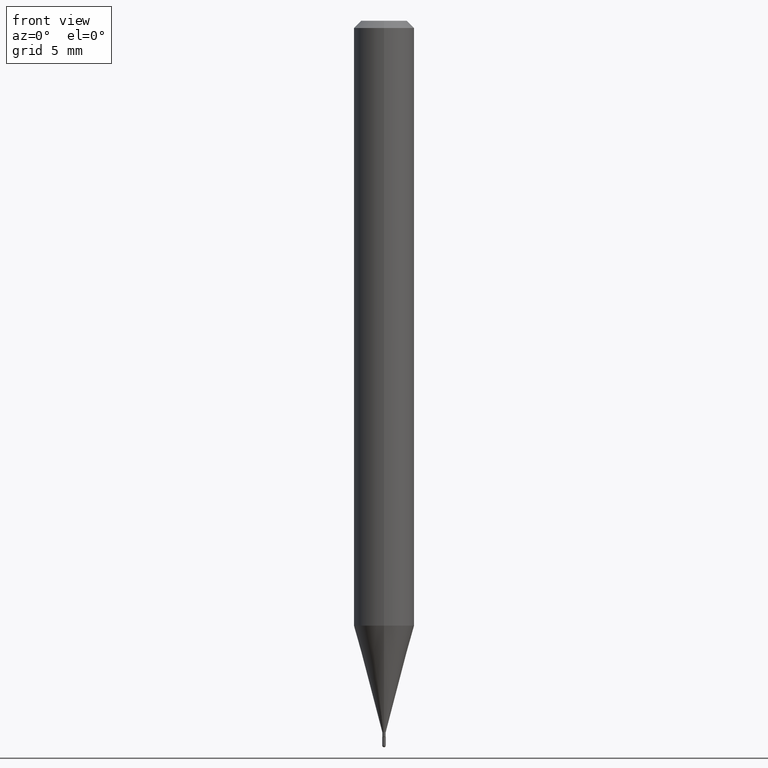
[diagram: clean part render]
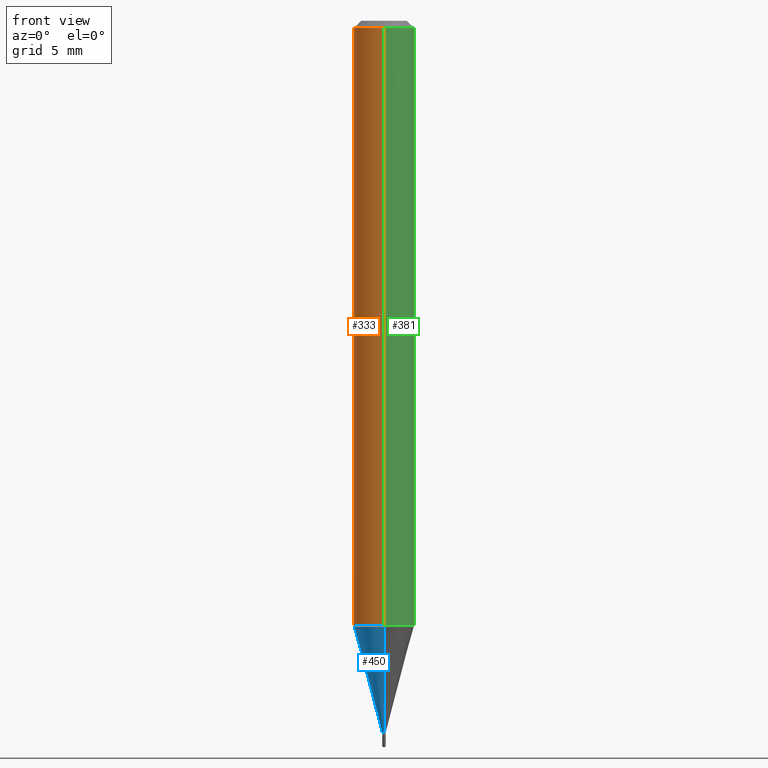
[diagram: same view with three faces highlighted in distinct colors, each labeled with its STEP entity id]
A machine part, front view with three faces highlighted in distinct colors.
Their STEP definitions:

[orange] entity #333 — the highlighted cylindrical surface (edge-blend (fillet) strip) has radius 1.5875 mm, axis along (-0, 0, 1).
#5 = VECTOR ( 'NONE', #292, 39.37007874015748143 ) ;
#21 = CARTESIAN_POINT ( 'NONE',  ( 3.668182812404223070E-31, -5.237251217748296269E-17, -0.01499999999999976179 ) ) ;
#30 = DIRECTION ( 'NONE',  ( -6.982962677686265922E-15, -1.000000000000000000, 4.370956789862821150E-15 ) ) ;
#36 = ORIENTED_EDGE ( 'NONE', *, *, #493, .T. ) ;
#56 = CIRCLE ( 'NONE', #263, 0.06250000000000000000 ) ;
#60 = CARTESIAN_POINT ( 'NONE',  ( -4.364351673553916201E-16, -0.06250000000000000000, 2.182188007395157999E-16 ) ) ;
#90 = CYLINDRICAL_SURFACE ( 'NONE', #310, 0.06250000000000000000 ) ;
#91 = LINE ( 'NONE', #408, #5 ) ;
#131 = VECTOR ( 'NONE', #298, 39.37007874015748143 ) ;
#173 = VERTEX_POINT ( 'NONE', #392 ) ;
#184 = CARTESIAN_POINT ( 'NONE',  ( 0.000000000000000000, 0.000000000000000000, 0.000000000000000000 ) ) ;
#197 = ORIENTED_EDGE ( 'NONE', *, *, #211, .T. ) ;
#208 = EDGE_CURVE ( 'NONE', #218, #422, #91, .T. ) ;
#211 = EDGE_CURVE ( 'NONE', #327, #173, #449, .T. ) ;
#218 = VERTEX_POINT ( 'NONE', #336 ) ;
#224 = DIRECTION ( 'NONE',  ( -2.445455208269520980E-29, 3.491500811832252799E-15, 1.000000000000000000 ) ) ;
#235 = DIRECTION ( 'NONE',  ( -2.445455208269520980E-29, 3.491500811832252799E-15, 1.000000000000000000 ) ) ;
#254 = DIRECTION ( 'NONE',  ( -6.982962677686265922E-15, -1.000000000000000000, 3.491500811832252799E-15 ) ) ;
#262 = DIRECTION ( 'NONE',  ( -2.445455208269520980E-29, 3.491500811832252799E-15, 1.000000000000000000 ) ) ;
#263 = AXIS2_PLACEMENT_3D ( 'NONE', #21, #262, #294 ) ;
#265 = EDGE_CURVE ( 'NONE', #422, #173, #56, .T. ) ;
#291 = CARTESIAN_POINT ( 'NONE',  ( -4.364351673553611504E-16, -0.06250000000000435763, -1.248809002353436615 ) ) ;
#292 = DIRECTION ( 'NONE',  ( -2.445455208269520699E-29, 3.491500811832253193E-15, 1.000000000000000000 ) ) ;
#294 = DIRECTION ( 'NONE',  ( -6.982962677686265922E-15, -1.000000000000000000, 3.483106191921935554E-15 ) ) ;
#298 = DIRECTION ( 'NONE',  ( -2.445455208269520699E-29, 3.491500811832253193E-15, 1.000000000000000000 ) ) ;
#302 = AXIS2_PLACEMENT_3D ( 'NONE', #377, #235, #30 ) ;
#310 = AXIS2_PLACEMENT_3D ( 'NONE', #184, #224, #254 ) ;
#327 = VERTEX_POINT ( 'NONE', #291 ) ;
#333 = ADVANCED_FACE ( 'NONE', ( #444 ), #90, .T. ) ;
#336 = CARTESIAN_POINT ( 'NONE',  ( 4.440892098500930859E-16, 0.06249999999999564237, -1.248809002353437059 ) ) ;
#346 = ORIENTED_EDGE ( 'NONE', *, *, #208, .F. ) ;
#377 = CARTESIAN_POINT ( 'NONE',  ( 3.053906478939076642E-29, -4.360217645540450292E-15, -1.248809002353436837 ) ) ;
#392 = CARTESIAN_POINT ( 'NONE',  ( -4.364351673553912750E-16, -0.06250000000000005551, -0.01499999999999954321 ) ) ;
#408 = CARTESIAN_POINT ( 'NONE',  ( 4.440892098500625669E-16, 0.06250000000000000000, -2.182188007395157999E-16 ) ) ;
#416 = CARTESIAN_POINT ( 'NONE',  ( 4.440892098500932831E-16, 0.06249999999999995143, -0.01499999999999997863 ) ) ;
#422 = VERTEX_POINT ( 'NONE', #416 ) ;
#444 = FACE_OUTER_BOUND ( 'NONE', #498, .T. ) ;
#449 = LINE ( 'NONE', #60, #131 ) ;
#451 = CIRCLE ( 'NONE', #302, 0.06250000000000000000 ) ;
#479 = ORIENTED_EDGE ( 'NONE', *, *, #265, .F. ) ;
#493 = EDGE_CURVE ( 'NONE', #218, #327, #451, .T. ) ;
#498 = EDGE_LOOP ( 'NONE', ( #346, #36, #197, #479 ) ) ;

[blue] entity #450 — the highlighted conical surface has half-angle 15 deg.
#20 = VECTOR ( 'NONE', #152, 39.37007874015748143 ) ;
#26 = DIRECTION ( 'NONE',  ( -6.982962677686265133E-15, -1.000000000000000000, 0.000000000000000000 ) ) ;
#30 = DIRECTION ( 'NONE',  ( -6.982962677686265922E-15, -1.000000000000000000, 4.370956789862821150E-15 ) ) ;
#34 = VECTOR ( 'NONE', #446, 39.37007874015748854 ) ;
#45 = EDGE_CURVE ( 'NONE', #457, #241, #47, .T. ) ;
#47 = CIRCLE ( 'NONE', #319, 0.003499999999999924179 ) ;
#58 = EDGE_CURVE ( 'NONE', #457, #218, #504, .T. ) ;
#93 = DIRECTION ( 'NONE',  ( -6.982962677686265133E-15, -1.000000000000000000, 0.000000000000000000 ) ) ;
#105 = FACE_OUTER_BOUND ( 'NONE', #388, .T. ) ;
#141 = CARTESIAN_POINT ( 'NONE',  ( 3.592373700947925645E-29, -5.129014692581578904E-15, -1.468999999999999861 ) ) ;
#152 = DIRECTION ( 'NONE',  ( 1.839019923739602682E-15, 0.2588190451025252914, 0.9659258262890670910 ) ) ;
#158 = CARTESIAN_POINT ( 'NONE',  ( 2.486899575163888867E-17, 0.003499999999994795035, -1.468999999999999861 ) ) ;
#218 = VERTEX_POINT ( 'NONE', #336 ) ;
#235 = DIRECTION ( 'NONE',  ( -2.445455208269520980E-29, 3.491500811832252799E-15, 1.000000000000000000 ) ) ;
#241 = VERTEX_POINT ( 'NONE', #260 ) ;
#260 = CARTESIAN_POINT ( 'NONE',  ( -2.444036937186547418E-17, -0.003500000000005053322, -1.468999999999999861 ) ) ;
#264 = CARTESIAN_POINT ( 'NONE',  ( 2.344791028008661059E-16, 0.003499999999994795035, -1.468999999999999861 ) ) ;
#272 = ORIENTED_EDGE ( 'NONE', *, *, #493, .F. ) ;
#291 = CARTESIAN_POINT ( 'NONE',  ( -4.364351673553611504E-16, -0.06250000000000435763, -1.248809002353436615 ) ) ;
#293 = EDGE_CURVE ( 'NONE', #241, #327, #340, .T. ) ;
#299 = DIRECTION ( 'NONE',  ( -2.445455208269520980E-29, 3.491500811832252799E-15, 1.000000000000000000 ) ) ;
#302 = AXIS2_PLACEMENT_3D ( 'NONE', #377, #235, #30 ) ;
#319 = AXIS2_PLACEMENT_3D ( 'NONE', #141, #299, #93 ) ;
#320 = ORIENTED_EDGE ( 'NONE', *, *, #293, .T. ) ;
#327 = VERTEX_POINT ( 'NONE', #291 ) ;
#331 = CONICAL_SURFACE ( 'NONE', #490, 0.003499999999999924179, 0.2617993877991506291 ) ;
#336 = CARTESIAN_POINT ( 'NONE',  ( 4.440892098500930859E-16, 0.06249999999999564237, -1.248809002353437059 ) ) ;
#340 = LINE ( 'NONE', #480, #34 ) ;
#377 = CARTESIAN_POINT ( 'NONE',  ( 3.053906478939076642E-29, -4.360217645540450292E-15, -1.248809002353436837 ) ) ;
#388 = EDGE_LOOP ( 'NONE', ( #510, #439, #320, #272 ) ) ;
#439 = ORIENTED_EDGE ( 'NONE', *, *, #45, .T. ) ;
#446 = DIRECTION ( 'NONE',  ( -1.807323732225332900E-15, -0.2588190451025185190, 0.9659258262890689783 ) ) ;
#450 = ADVANCED_FACE ( 'NONE', ( #105 ), #331, .T. ) ;
#451 = CIRCLE ( 'NONE', #302, 0.06250000000000000000 ) ;
#457 = VERTEX_POINT ( 'NONE', #264 ) ;
#480 = CARTESIAN_POINT ( 'NONE',  ( -2.444036937186547418E-17, -0.003500000000005053322, -1.468999999999999861 ) ) ;
#490 = AXIS2_PLACEMENT_3D ( 'NONE', #502, #499, #26 ) ;
#493 = EDGE_CURVE ( 'NONE', #218, #327, #451, .T. ) ;
#499 = DIRECTION ( 'NONE',  ( -2.445455208269520980E-29, 3.491500811832252799E-15, 1.000000000000000000 ) ) ;
#502 = CARTESIAN_POINT ( 'NONE',  ( 3.592373700947925645E-29, -5.129014692581578904E-15, -1.468999999999999861 ) ) ;
#504 = LINE ( 'NONE', #158, #20 ) ;
#510 = ORIENTED_EDGE ( 'NONE', *, *, #58, .F. ) ;

[green] entity #381 — the highlighted cylindrical surface (edge-blend (fillet) strip) has radius 1.5875 mm, axis along (-0, 0, 1).
#5 = VECTOR ( 'NONE', #292, 39.37007874015748143 ) ;
#17 = DIRECTION ( 'NONE',  ( -2.445455208269520980E-29, 3.491500811832252799E-15, 1.000000000000000000 ) ) ;
#28 = AXIS2_PLACEMENT_3D ( 'NONE', #213, #430, #351 ) ;
#60 = CARTESIAN_POINT ( 'NONE',  ( -4.364351673553916201E-16, -0.06250000000000000000, 2.182188007395157999E-16 ) ) ;
#73 = EDGE_LOOP ( 'NONE', ( #222, #145, #332, #231 ) ) ;
#91 = LINE ( 'NONE', #408, #5 ) ;
#131 = VECTOR ( 'NONE', #298, 39.37007874015748143 ) ;
#140 = FACE_OUTER_BOUND ( 'NONE', #73, .T. ) ;
#142 = EDGE_CURVE ( 'NONE', #173, #422, #398, .T. ) ;
#145 = ORIENTED_EDGE ( 'NONE', *, *, #208, .T. ) ;
#150 = DIRECTION ( 'NONE',  ( -6.982962677686265922E-15, -1.000000000000000000, 4.370956789862821150E-15 ) ) ;
#173 = VERTEX_POINT ( 'NONE', #392 ) ;
#196 = CARTESIAN_POINT ( 'NONE',  ( 3.053906478939076642E-29, -4.360217645540450292E-15, -1.248809002353436837 ) ) ;
#200 = CIRCLE ( 'NONE', #342, 0.06250000000000000000 ) ;
#208 = EDGE_CURVE ( 'NONE', #218, #422, #91, .T. ) ;
#210 = AXIS2_PLACEMENT_3D ( 'NONE', #364, #17, #374 ) ;
#211 = EDGE_CURVE ( 'NONE', #327, #173, #449, .T. ) ;
#213 = CARTESIAN_POINT ( 'NONE',  ( 3.668182812404223070E-31, -5.237251217748296269E-17, -0.01499999999999976179 ) ) ;
#218 = VERTEX_POINT ( 'NONE', #336 ) ;
#222 = ORIENTED_EDGE ( 'NONE', *, *, #443, .T. ) ;
#231 = ORIENTED_EDGE ( 'NONE', *, *, #211, .F. ) ;
#267 = DIRECTION ( 'NONE',  ( -2.445455208269520980E-29, 3.491500811832252799E-15, 1.000000000000000000 ) ) ;
#291 = CARTESIAN_POINT ( 'NONE',  ( -4.364351673553611504E-16, -0.06250000000000435763, -1.248809002353436615 ) ) ;
#292 = DIRECTION ( 'NONE',  ( -2.445455208269520699E-29, 3.491500811832253193E-15, 1.000000000000000000 ) ) ;
#298 = DIRECTION ( 'NONE',  ( -2.445455208269520699E-29, 3.491500811832253193E-15, 1.000000000000000000 ) ) ;
#327 = VERTEX_POINT ( 'NONE', #291 ) ;
#332 = ORIENTED_EDGE ( 'NONE', *, *, #142, .F. ) ;
#336 = CARTESIAN_POINT ( 'NONE',  ( 4.440892098500930859E-16, 0.06249999999999564237, -1.248809002353437059 ) ) ;
#342 = AXIS2_PLACEMENT_3D ( 'NONE', #196, #267, #150 ) ;
#351 = DIRECTION ( 'NONE',  ( -6.982962677686265922E-15, -1.000000000000000000, 3.483106191921935554E-15 ) ) ;
#364 = CARTESIAN_POINT ( 'NONE',  ( 0.000000000000000000, 0.000000000000000000, 0.000000000000000000 ) ) ;
#374 = DIRECTION ( 'NONE',  ( -6.982962677686265922E-15, -1.000000000000000000, 3.491500811832252799E-15 ) ) ;
#381 = ADVANCED_FACE ( 'NONE', ( #140 ), #406, .T. ) ;
#392 = CARTESIAN_POINT ( 'NONE',  ( -4.364351673553912750E-16, -0.06250000000000005551, -0.01499999999999954321 ) ) ;
#398 = CIRCLE ( 'NONE', #28, 0.06250000000000000000 ) ;
#406 = CYLINDRICAL_SURFACE ( 'NONE', #210, 0.06250000000000000000 ) ;
#408 = CARTESIAN_POINT ( 'NONE',  ( 4.440892098500625669E-16, 0.06250000000000000000, -2.182188007395157999E-16 ) ) ;
#416 = CARTESIAN_POINT ( 'NONE',  ( 4.440892098500932831E-16, 0.06249999999999995143, -0.01499999999999997863 ) ) ;
#422 = VERTEX_POINT ( 'NONE', #416 ) ;
#430 = DIRECTION ( 'NONE',  ( -2.445455208269520980E-29, 3.491500811832252799E-15, 1.000000000000000000 ) ) ;
#443 = EDGE_CURVE ( 'NONE', #327, #218, #200, .T. ) ;
#449 = LINE ( 'NONE', #60, #131 ) ;